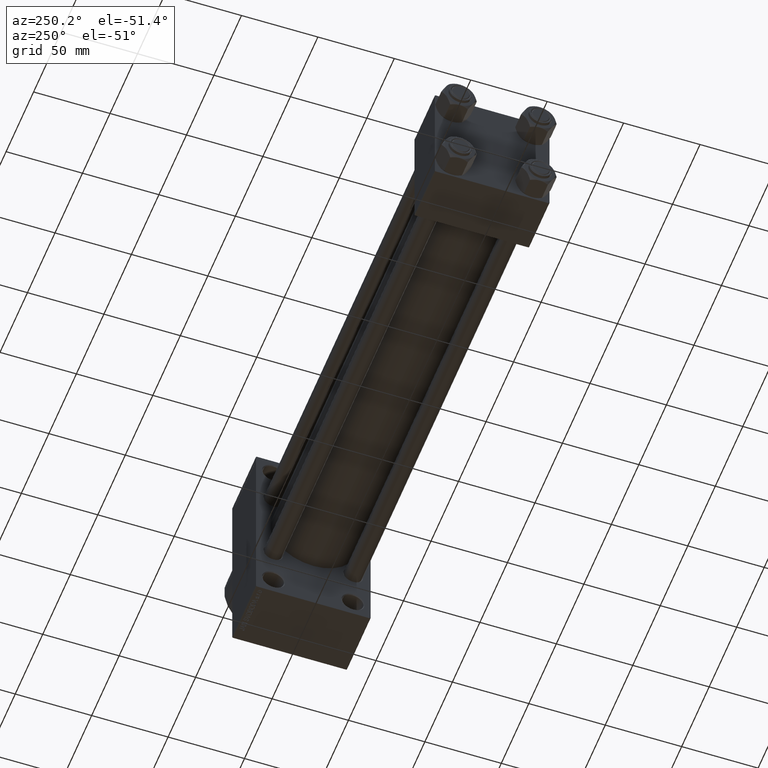
[diagram: clean part render]
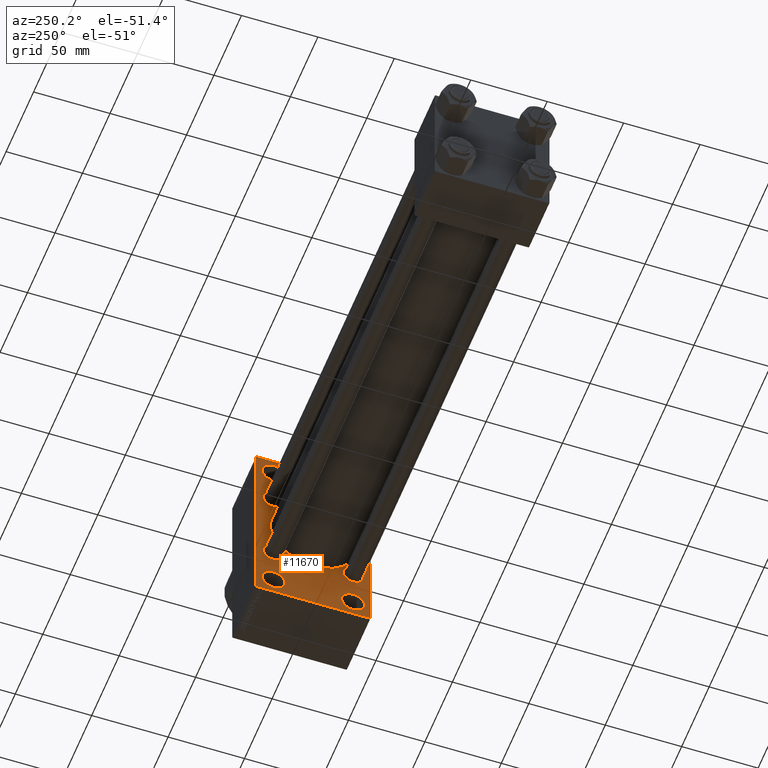
[diagram: same view with one face highlighted and labeled with its STEP entity id]
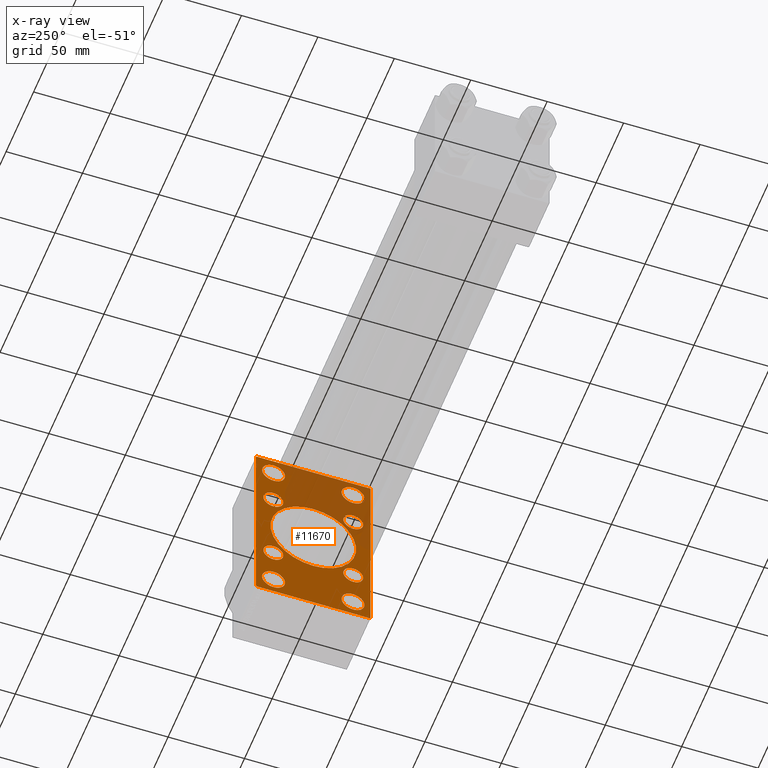
[diagram: x-ray of the same camera — body ghosted, the highlighted face saturated]
A machine part, auxiliary view. The second image highlights one B-rep face of the part: STEP entity #11670.
The next image is the same camera in x-ray: the body ghosted, the highlighted face saturated — about 35% of this face is hidden behind the body in this view.
In plain terms, the highlighted planar face has unit normal (-1, 0, 0).
Its self-contained STEP definition (entity closure, byte-faithful):
#307 = CARTESIAN_POINT ( 'NONE',  ( 324.9999999999999432, -26.14999999999999147, -32.65000000000001990 ) ) ;
#965 = EDGE_CURVE ( 'NONE', #5963, #39911, #36585, .T. ) ;
#1037 = ORIENTED_EDGE ( 'NONE', *, *, #40470, .T. ) ;
#1169 = AXIS2_PLACEMENT_3D ( 'NONE', #41691, #4789, #30424 ) ;
#1371 = VERTEX_POINT ( 'NONE', #1993 ) ;
#1605 = ORIENTED_EDGE ( 'NONE', *, *, #4237, .T. ) ;
#1841 = CARTESIAN_POINT ( 'NONE',  ( 324.9999999999999432, 26.00000000000000000, 44.99999999999987210 ) ) ;
#1993 = CARTESIAN_POINT ( 'NONE',  ( 324.9999999999999432, -26.14999999999999147, 19.65000000000000213 ) ) ;
#2144 = DIRECTION ( 'NONE',  ( 0.000000000000000000, 0.000000000000000000, -1.000000000000000000 ) ) ;
#2393 = CARTESIAN_POINT ( 'NONE',  ( 324.9999999999999432, 26.00000000000000000, 52.49999999999999289 ) ) ;
#2567 = CARTESIAN_POINT ( 'NONE',  ( 324.9999999999999432, 26.00000000000000000, -52.49999999999999289 ) ) ;
#2628 = FACE_BOUND ( 'NONE', #33123, .T. ) ;
#2644 = DIRECTION ( 'NONE',  ( 0.000000000000000000, 0.000000000000000000, 1.000000000000000000 ) ) ;
#2719 = EDGE_CURVE ( 'NONE', #33990, #11567, #12083, .T. ) ;
#2779 = DIRECTION ( 'NONE',  ( 0.000000000000000000, 0.000000000000000000, 1.000000000000000000 ) ) ;
#2807 = VERTEX_POINT ( 'NONE', #32762 ) ;
#2832 = EDGE_CURVE ( 'NONE', #17806, #44058, #6081, .T. ) ;
#2838 = DIRECTION ( 'NONE',  ( 0.000000000000000000, 0.000000000000000000, -1.000000000000000000 ) ) ;
#3031 = VERTEX_POINT ( 'NONE', #6133 ) ;
#3072 = ORIENTED_EDGE ( 'NONE', *, *, #23231, .T. ) ;
#3107 = CARTESIAN_POINT ( 'NONE',  ( 324.9999999999999432, 36.99999999999993605, -64.00000000000000000 ) ) ;
#3223 = EDGE_LOOP ( 'NONE', ( #38195, #19008 ) ) ;
#3477 = DIRECTION ( 'NONE',  ( 1.000000000000000000, -0.000000000000000000, 0.000000000000000000 ) ) ;
#3544 = FACE_BOUND ( 'NONE', #38585, .T. ) ;
#3603 = DIRECTION ( 'NONE',  ( 0.000000000000000000, -1.000000000000000000, -1.850371707708594563E-16 ) ) ;
#3704 = VECTOR ( 'NONE', #31367, 1000.000000000000000 ) ;
#3937 = AXIS2_PLACEMENT_3D ( 'NONE', #9794, #46956, #32330 ) ;
#4051 = DIRECTION ( 'NONE',  ( -0.000000000000000000, -0.7071067811865965336, -0.7071067811864985009 ) ) ;
#4237 = EDGE_CURVE ( 'NONE', #42310, #35100, #37202, .T. ) ;
#4491 = CARTESIAN_POINT ( 'NONE',  ( 324.9999999999999432, -25.99999999999999645, -60.00000000000010658 ) ) ;
#4494 = CIRCLE ( 'NONE', #31283, 28.00000000000000000 ) ;
#4580 = VERTEX_POINT ( 'NONE', #1841 ) ;
#4789 = DIRECTION ( 'NONE',  ( 1.000000000000000000, -0.000000000000000000, 0.000000000000000000 ) ) ;
#5126 = CARTESIAN_POINT ( 'NONE',  ( 324.9999999999999432, -26.14999999999999147, -19.65000000000000213 ) ) ;
#5277 = DIRECTION ( 'NONE',  ( 1.000000000000000000, -0.000000000000000000, 0.000000000000000000 ) ) ;
#5550 = DIRECTION ( 'NONE',  ( 0.000000000000000000, 0.000000000000000000, 1.000000000000000000 ) ) ;
#5740 = DIRECTION ( 'NONE',  ( 1.000000000000000000, 0.000000000000000000, 0.000000000000000000 ) ) ;
#5753 = EDGE_LOOP ( 'NONE', ( #46261, #28371 ) ) ;
#5963 = VERTEX_POINT ( 'NONE', #26769 ) ;
#6081 = CIRCLE ( 'NONE', #25201, 7.500000000000117240 ) ;
#6128 = VERTEX_POINT ( 'NONE', #16657 ) ;
#6133 = CARTESIAN_POINT ( 'NONE',  ( 324.9999999999999432, 26.14999999999999858, 32.65000000000001990 ) ) ;
#6167 = AXIS2_PLACEMENT_3D ( 'NONE', #35059, #38415, #31463 ) ;
#6204 = FACE_OUTER_BOUND ( 'NONE', #18358, .T. ) ;
#6366 = DIRECTION ( 'NONE',  ( 0.000000000000000000, 0.000000000000000000, 1.000000000000000000 ) ) ;
#6445 = FACE_BOUND ( 'NONE', #16335, .T. ) ;
#6845 = DIRECTION ( 'NONE',  ( 1.000000000000000000, -0.000000000000000000, 0.000000000000000000 ) ) ;
#6907 = FACE_BOUND ( 'NONE', #41489, .T. ) ;
#7041 = VERTEX_POINT ( 'NONE', #4491 ) ;
#7671 = VERTEX_POINT ( 'NONE', #12258 ) ;
#7785 = EDGE_CURVE ( 'NONE', #6128, #7671, #32191, .T. ) ;
#8018 = CIRCLE ( 'NONE', #44786, 6.500000000000008882 ) ;
#8064 = DIRECTION ( 'NONE',  ( 1.000000000000000000, -0.000000000000000000, 0.000000000000000000 ) ) ;
#8247 = CIRCLE ( 'NONE', #40409, 6.500000000000008882 ) ;
#8471 = AXIS2_PLACEMENT_3D ( 'NONE', #30004, #16780, #20153 ) ;
#9082 = EDGE_CURVE ( 'NONE', #12389, #17489, #10013, .T. ) ;
#9098 = DIRECTION ( 'NONE',  ( 0.000000000000000000, 0.000000000000000000, 1.000000000000000000 ) ) ;
#9145 = DIRECTION ( 'NONE',  ( 1.000000000000000000, -0.000000000000000000, 0.000000000000000000 ) ) ;
#9214 = AXIS2_PLACEMENT_3D ( 'NONE', #42467, #28070, #5550 ) ;
#9404 = EDGE_CURVE ( 'NONE', #37383, #20962, #21458, .T. ) ;
#9794 = CARTESIAN_POINT ( 'NONE',  ( 324.9999999999999432, 0.000000000000000000, 0.000000000000000000 ) ) ;
#10013 = CIRCLE ( 'NONE', #8471, 6.500000000000008882 ) ;
#10273 = FACE_BOUND ( 'NONE', #5753, .T. ) ;
#10438 = DIRECTION ( 'NONE',  ( 0.000000000000000000, 0.000000000000000000, 1.000000000000000000 ) ) ;
#10620 = VECTOR ( 'NONE', #33243, 1000.000000000000000 ) ;
#10662 = CARTESIAN_POINT ( 'NONE',  ( 324.9999999999999432, 26.00000000000000000, -52.49999999999999289 ) ) ;
#10997 = VERTEX_POINT ( 'NONE', #35392 ) ;
#11005 = EDGE_CURVE ( 'NONE', #20962, #37383, #27693, .T. ) ;
#11567 = VERTEX_POINT ( 'NONE', #34968 ) ;
#11670 = ADVANCED_FACE ( 'NONE', ( #24173, #10273, #24653, #6445, #3544, #18136, #2628, #47181, #6907, #6204 ), #32095, .T. ) ;
#11951 = DIRECTION ( 'NONE',  ( 1.000000000000000000, 0.000000000000000000, 0.000000000000000000 ) ) ;
#11969 = CARTESIAN_POINT ( 'NONE',  ( 324.9999999999999432, -25.99999999999999645, 52.50000000000000000 ) ) ;
#12083 = CIRCLE ( 'NONE', #42843, 28.00000000000000000 ) ;
#12235 = ORIENTED_EDGE ( 'NONE', *, *, #28352, .T. ) ;
#12240 = VECTOR ( 'NONE', #14977, 1000.000000000000000 ) ;
#12258 = CARTESIAN_POINT ( 'NONE',  ( 324.9999999999999432, 26.14999999999999858, -19.64999999999999503 ) ) ;
#12389 = VERTEX_POINT ( 'NONE', #307 ) ;
#12648 = CIRCLE ( 'NONE', #42555, 7.500000000000117240 ) ;
#13386 = ORIENTED_EDGE ( 'NONE', *, *, #26392, .T. ) ;
#13528 = DIRECTION ( 'NONE',  ( 1.000000000000000000, -0.000000000000000000, 0.000000000000000000 ) ) ;
#13598 = EDGE_CURVE ( 'NONE', #28834, #7041, #43079, .T. ) ;
#13646 = CARTESIAN_POINT ( 'NONE',  ( 324.9999999999999432, 26.00000000000000000, -60.00000000000010658 ) ) ;
#14120 = ORIENTED_EDGE ( 'NONE', *, *, #9404, .T. ) ;
#14319 = DIRECTION ( 'NONE',  ( 0.000000000000000000, -5.421010862427522170E-17, -1.000000000000000000 ) ) ;
#14504 = CARTESIAN_POINT ( 'NONE',  ( 324.9999999999999432, -26.14999999999999147, 32.65000000000001990 ) ) ;
#14536 = ORIENTED_EDGE ( 'NONE', *, *, #28301, .T. ) ;
#14610 = ORIENTED_EDGE ( 'NONE', *, *, #14854, .T. ) ;
#14635 = AXIS2_PLACEMENT_3D ( 'NONE', #17127, #13528, #6366 ) ;
#14819 = LINE ( 'NONE', #36885, #33138 ) ;
#14854 = EDGE_CURVE ( 'NONE', #41599, #29648, #14819, .T. ) ;
#14977 = DIRECTION ( 'NONE',  ( 0.000000000000000000, -1.000000000000000000, -1.850371707708594563E-16 ) ) ;
#15037 = CIRCLE ( 'NONE', #30363, 7.500000000000117240 ) ;
#15109 = ORIENTED_EDGE ( 'NONE', *, *, #45310, .T. ) ;
#15269 = ORIENTED_EDGE ( 'NONE', *, *, #26081, .T. ) ;
#16089 = LINE ( 'NONE', #34330, #40762 ) ;
#16335 = EDGE_LOOP ( 'NONE', ( #44241, #3072 ) ) ;
#16657 = CARTESIAN_POINT ( 'NONE',  ( 324.9999999999999432, 26.14999999999999858, -32.65000000000001279 ) ) ;
#16780 = DIRECTION ( 'NONE',  ( 1.000000000000000000, -0.000000000000000000, 0.000000000000000000 ) ) ;
#16973 = EDGE_CURVE ( 'NONE', #3031, #24153, #23359, .T. ) ;
#17127 = CARTESIAN_POINT ( 'NONE',  ( 324.9999999999999432, -26.14999999999999147, 26.15000000000000924 ) ) ;
#17489 = VERTEX_POINT ( 'NONE', #5126 ) ;
#17496 = AXIS2_PLACEMENT_3D ( 'NONE', #21452, #6845, #36783 ) ;
#17806 = VERTEX_POINT ( 'NONE', #18963 ) ;
#17965 = LINE ( 'NONE', #40284, #20520 ) ;
#18136 = FACE_BOUND ( 'NONE', #3223, .T. ) ;
#18354 = DIRECTION ( 'NONE',  ( 1.000000000000000000, -0.000000000000000000, 0.000000000000000000 ) ) ;
#18358 = EDGE_LOOP ( 'NONE', ( #15269, #12235, #21288, #15109, #45090, #1605, #32978, #14610 ) ) ;
#18576 = CARTESIAN_POINT ( 'NONE',  ( 324.9999999999999432, 37.50000000000000000, 63.99999999999998579 ) ) ;
#18732 = DIRECTION ( 'NONE',  ( 0.000000000000000000, 0.000000000000000000, 1.000000000000000000 ) ) ;
#18798 = EDGE_CURVE ( 'NONE', #44058, #17806, #12648, .T. ) ;
#18816 = LINE ( 'NONE', #18576, #12240 ) ;
#18963 = CARTESIAN_POINT ( 'NONE',  ( 324.9999999999999432, -25.99999999999999645, 60.00000000000011369 ) ) ;
#19008 = ORIENTED_EDGE ( 'NONE', *, *, #44334, .T. ) ;
#19063 = DIRECTION ( 'NONE',  ( 0.000000000000000000, 0.000000000000000000, 1.000000000000000000 ) ) ;
#19241 = AXIS2_PLACEMENT_3D ( 'NONE', #22194, #8064, #19063 ) ;
#19475 = CARTESIAN_POINT ( 'NONE',  ( 324.9999999999999432, 8.269258236473784371E-16, -28.00000000000000000 ) ) ;
#19476 = ORIENTED_EDGE ( 'NONE', *, *, #9082, .T. ) ;
#20153 = DIRECTION ( 'NONE',  ( 0.000000000000000000, 0.000000000000000000, 1.000000000000000000 ) ) ;
#20251 = VECTOR ( 'NONE', #14319, 1000.000000000000000 ) ;
#20520 = VECTOR ( 'NONE', #3603, 1000.000000000000000 ) ;
#20737 = DIRECTION ( 'NONE',  ( 0.000000000000000000, -0.7071067811865965336, 0.7071067811864985009 ) ) ;
#20961 = CARTESIAN_POINT ( 'NONE',  ( 324.9999999999999432, 26.00000000000000000, -44.99999999999987210 ) ) ;
#20962 = VERTEX_POINT ( 'NONE', #13646 ) ;
#20995 = DIRECTION ( 'NONE',  ( 1.000000000000000000, -0.000000000000000000, 0.000000000000000000 ) ) ;
#21288 = ORIENTED_EDGE ( 'NONE', *, *, #965, .F. ) ;
#21452 = CARTESIAN_POINT ( 'NONE',  ( 324.9999999999999432, 26.14999999999999858, -26.15000000000000213 ) ) ;
#21458 = CIRCLE ( 'NONE', #37566, 7.500000000000117240 ) ;
#21888 = EDGE_CURVE ( 'NONE', #10997, #4580, #15037, .T. ) ;
#22194 = CARTESIAN_POINT ( 'NONE',  ( 324.9999999999999432, -25.99999999999999645, -52.49999999999999289 ) ) ;
#22316 = CIRCLE ( 'NONE', #14635, 6.500000000000008882 ) ;
#22343 = DIRECTION ( 'NONE',  ( 1.000000000000000000, -0.000000000000000000, 0.000000000000000000 ) ) ;
#22760 = DIRECTION ( 'NONE',  ( 0.000000000000000000, 0.000000000000000000, 1.000000000000000000 ) ) ;
#22793 = CARTESIAN_POINT ( 'NONE',  ( 324.9999999999999432, -25.99999999999999645, -44.99999999999987210 ) ) ;
#23231 = EDGE_CURVE ( 'NONE', #4580, #10997, #30429, .T. ) ;
#23359 = CIRCLE ( 'NONE', #1169, 6.500000000000008882 ) ;
#23413 = VERTEX_POINT ( 'NONE', #23431 ) ;
#23431 = CARTESIAN_POINT ( 'NONE',  ( 324.9999999999999432, -36.99999999999993605, -64.00000000000001421 ) ) ;
#24093 = CARTESIAN_POINT ( 'NONE',  ( 324.9999999999999432, -26.14999999999999147, -26.15000000000000924 ) ) ;
#24153 = VERTEX_POINT ( 'NONE', #27246 ) ;
#24173 = FACE_BOUND ( 'NONE', #35971, .T. ) ;
#24653 = FACE_BOUND ( 'NONE', #26867, .T. ) ;
#25201 = AXIS2_PLACEMENT_3D ( 'NONE', #32305, #18354, #43332 ) ;
#25330 = CARTESIAN_POINT ( 'NONE',  ( 324.9999999999999432, -37.49999999999999289, 63.99999999999997158 ) ) ;
#26081 = EDGE_CURVE ( 'NONE', #29648, #23413, #17965, .T. ) ;
#26392 = EDGE_CURVE ( 'NONE', #11567, #33990, #4494, .T. ) ;
#26769 = CARTESIAN_POINT ( 'NONE',  ( 324.9999999999999432, -37.49999999999999289, 63.49999999999991473 ) ) ;
#26867 = EDGE_LOOP ( 'NONE', ( #14120, #39029 ) ) ;
#27132 = DIRECTION ( 'NONE',  ( 0.000000000000000000, 0.000000000000000000, 1.000000000000000000 ) ) ;
#27246 = CARTESIAN_POINT ( 'NONE',  ( 324.9999999999999432, 26.14999999999999858, 19.64999999999999147 ) ) ;
#27391 = CARTESIAN_POINT ( 'NONE',  ( 324.9999999999999432, 37.50000000000000000, 63.49999999999998579 ) ) ;
#27693 = CIRCLE ( 'NONE', #46052, 7.500000000000117240 ) ;
#27944 = ORIENTED_EDGE ( 'NONE', *, *, #30515, .T. ) ;
#28070 = DIRECTION ( 'NONE',  ( 1.000000000000000000, -0.000000000000000000, 0.000000000000000000 ) ) ;
#28301 = EDGE_CURVE ( 'NONE', #17489, #12389, #8247, .T. ) ;
#28352 = EDGE_CURVE ( 'NONE', #23413, #39911, #38490, .T. ) ;
#28371 = ORIENTED_EDGE ( 'NONE', *, *, #40205, .T. ) ;
#28834 = VERTEX_POINT ( 'NONE', #22793 ) ;
#29648 = VERTEX_POINT ( 'NONE', #3107 ) ;
#30004 = CARTESIAN_POINT ( 'NONE',  ( 324.9999999999999432, -26.14999999999999147, -26.15000000000000924 ) ) ;
#30207 = DIRECTION ( 'NONE',  ( 1.000000000000000000, -0.000000000000000000, 0.000000000000000000 ) ) ;
#30363 = AXIS2_PLACEMENT_3D ( 'NONE', #45834, #9145, #27132 ) ;
#30424 = DIRECTION ( 'NONE',  ( 0.000000000000000000, 0.000000000000000000, 1.000000000000000000 ) ) ;
#30429 = CIRCLE ( 'NONE', #32710, 7.500000000000117240 ) ;
#30515 = EDGE_CURVE ( 'NONE', #7671, #6128, #47360, .T. ) ;
#31283 = AXIS2_PLACEMENT_3D ( 'NONE', #38588, #5740, #2144 ) ;
#31292 = CARTESIAN_POINT ( 'NONE',  ( 324.9999999999999432, -50.49999999999740652, -50.50000000000441958 ) ) ;
#31367 = DIRECTION ( 'NONE',  ( 0.000000000000000000, 0.7071067811865867636, -0.7071067811865081598 ) ) ;
#31463 = DIRECTION ( 'NONE',  ( 0.000000000000000000, 0.000000000000000000, 1.000000000000000000 ) ) ;
#31628 = CIRCLE ( 'NONE', #19241, 7.500000000000117240 ) ;
#31967 = VECTOR ( 'NONE', #20737, 1000.000000000000114 ) ;
#32016 = DIRECTION ( 'NONE',  ( 1.000000000000000000, -0.000000000000000000, 0.000000000000000000 ) ) ;
#32095 = PLANE ( 'NONE',  #3937 ) ;
#32164 = CARTESIAN_POINT ( 'NONE',  ( 324.9999999999999432, -25.99999999999999645, 44.99999999999987921 ) ) ;
#32191 = CIRCLE ( 'NONE', #9214, 6.500000000000008882 ) ;
#32305 = CARTESIAN_POINT ( 'NONE',  ( 324.9999999999999432, -25.99999999999999645, 52.50000000000000000 ) ) ;
#32330 = DIRECTION ( 'NONE',  ( -0.000000000000000000, 0.000000000000000000, 1.000000000000000000 ) ) ;
#32541 = ORIENTED_EDGE ( 'NONE', *, *, #7785, .T. ) ;
#32710 = AXIS2_PLACEMENT_3D ( 'NONE', #2393, #35470, #2644 ) ;
#32714 = DIRECTION ( 'NONE',  ( 0.000000000000000000, 0.000000000000000000, 1.000000000000000000 ) ) ;
#32762 = CARTESIAN_POINT ( 'NONE',  ( 324.9999999999999432, -36.99999999999992895, 63.99999999999997158 ) ) ;
#32795 = CARTESIAN_POINT ( 'NONE',  ( 324.9999999999999432, 37.50000000000000000, 63.99999999999998579 ) ) ;
#32978 = ORIENTED_EDGE ( 'NONE', *, *, #44984, .T. ) ;
#33123 = EDGE_LOOP ( 'NONE', ( #27944, #32541 ) ) ;
#33138 = VECTOR ( 'NONE', #4051, 1000.000000000000114 ) ;
#33243 = DIRECTION ( 'NONE',  ( 0.000000000000000000, 0.000000000000000000, -1.000000000000000000 ) ) ;
#33610 = EDGE_CURVE ( 'NONE', #42310, #2807, #18816, .T. ) ;
#33990 = VERTEX_POINT ( 'NONE', #19475 ) ;
#34150 = EDGE_CURVE ( 'NONE', #1371, #39276, #42925, .T. ) ;
#34216 = ORIENTED_EDGE ( 'NONE', *, *, #2832, .T. ) ;
#34330 = CARTESIAN_POINT ( 'NONE',  ( 324.9999999999999432, -50.49999999999969447, 50.50000000000039080 ) ) ;
#34968 = CARTESIAN_POINT ( 'NONE',  ( 324.9999999999999432, -2.602085213965210642E-15, 28.00000000000000000 ) ) ;
#35059 = CARTESIAN_POINT ( 'NONE',  ( 324.9999999999999432, -26.14999999999999147, 26.15000000000000924 ) ) ;
#35100 = VERTEX_POINT ( 'NONE', #27391 ) ;
#35392 = CARTESIAN_POINT ( 'NONE',  ( 324.9999999999999432, 26.00000000000000000, 60.00000000000010658 ) ) ;
#35470 = DIRECTION ( 'NONE',  ( 1.000000000000000000, -0.000000000000000000, 0.000000000000000000 ) ) ;
#35971 = EDGE_LOOP ( 'NONE', ( #34216, #45294 ) ) ;
#36270 = CARTESIAN_POINT ( 'NONE',  ( 324.9999999999999432, 26.14999999999999858, 26.15000000000000213 ) ) ;
#36585 = LINE ( 'NONE', #25330, #10620 ) ;
#36620 = LINE ( 'NONE', #32795, #20251 ) ;
#36783 = DIRECTION ( 'NONE',  ( 0.000000000000000000, 0.000000000000000000, 1.000000000000000000 ) ) ;
#36885 = CARTESIAN_POINT ( 'NONE',  ( 324.9999999999999432, 50.49999999999739941, -50.50000000000441247 ) ) ;
#37202 = LINE ( 'NONE', #38568, #3704 ) ;
#37370 = ORIENTED_EDGE ( 'NONE', *, *, #34150, .T. ) ;
#37383 = VERTEX_POINT ( 'NONE', #20961 ) ;
#37566 = AXIS2_PLACEMENT_3D ( 'NONE', #10662, #3477, #32714 ) ;
#37860 = EDGE_LOOP ( 'NONE', ( #14536, #19476 ) ) ;
#38195 = ORIENTED_EDGE ( 'NONE', *, *, #16973, .T. ) ;
#38400 = DIRECTION ( 'NONE',  ( -0.000000000000000000, 0.7071067811865524577, 0.7071067811865426878 ) ) ;
#38415 = DIRECTION ( 'NONE',  ( 1.000000000000000000, -0.000000000000000000, 0.000000000000000000 ) ) ;
#38490 = LINE ( 'NONE', #31292, #31967 ) ;
#38568 = CARTESIAN_POINT ( 'NONE',  ( 324.9999999999999432, 50.49999999999791100, 50.50000000000351719 ) ) ;
#38585 = EDGE_LOOP ( 'NONE', ( #1037, #37370 ) ) ;
#38588 = CARTESIAN_POINT ( 'NONE',  ( 324.9999999999999432, -2.602085213965210642E-15, 0.000000000000000000 ) ) ;
#39029 = ORIENTED_EDGE ( 'NONE', *, *, #11005, .T. ) ;
#39246 = AXIS2_PLACEMENT_3D ( 'NONE', #41945, #5277, #9098 ) ;
#39276 = VERTEX_POINT ( 'NONE', #14504 ) ;
#39911 = VERTEX_POINT ( 'NONE', #44805 ) ;
#40205 = EDGE_CURVE ( 'NONE', #7041, #28834, #31628, .T. ) ;
#40284 = CARTESIAN_POINT ( 'NONE',  ( 324.9999999999999432, 37.49999999999999289, -64.00000000000000000 ) ) ;
#40409 = AXIS2_PLACEMENT_3D ( 'NONE', #24093, #32016, #2779 ) ;
#40470 = EDGE_CURVE ( 'NONE', #39276, #1371, #22316, .T. ) ;
#40762 = VECTOR ( 'NONE', #38400, 1000.000000000000000 ) ;
#41489 = EDGE_LOOP ( 'NONE', ( #13386, #45444 ) ) ;
#41599 = VERTEX_POINT ( 'NONE', #43337 ) ;
#41691 = CARTESIAN_POINT ( 'NONE',  ( 324.9999999999999432, 26.14999999999999858, 26.15000000000000213 ) ) ;
#41945 = CARTESIAN_POINT ( 'NONE',  ( 324.9999999999999432, -25.99999999999999645, -52.49999999999999289 ) ) ;
#42310 = VERTEX_POINT ( 'NONE', #44882 ) ;
#42467 = CARTESIAN_POINT ( 'NONE',  ( 324.9999999999999432, 26.14999999999999858, -26.15000000000000213 ) ) ;
#42555 = AXIS2_PLACEMENT_3D ( 'NONE', #11969, #30207, #22760 ) ;
#42843 = AXIS2_PLACEMENT_3D ( 'NONE', #44814, #11951, #2838 ) ;
#42925 = CIRCLE ( 'NONE', #6167, 6.500000000000008882 ) ;
#43079 = CIRCLE ( 'NONE', #39246, 7.500000000000117240 ) ;
#43332 = DIRECTION ( 'NONE',  ( 0.000000000000000000, 0.000000000000000000, 1.000000000000000000 ) ) ;
#43337 = CARTESIAN_POINT ( 'NONE',  ( 324.9999999999999432, 37.49999999999999289, -63.50000000000001421 ) ) ;
#44058 = VERTEX_POINT ( 'NONE', #32164 ) ;
#44241 = ORIENTED_EDGE ( 'NONE', *, *, #21888, .T. ) ;
#44334 = EDGE_CURVE ( 'NONE', #24153, #3031, #8018, .T. ) ;
#44786 = AXIS2_PLACEMENT_3D ( 'NONE', #36270, #22343, #18732 ) ;
#44805 = CARTESIAN_POINT ( 'NONE',  ( 324.9999999999999432, -37.49999999999999289, -63.50000000000002842 ) ) ;
#44814 = CARTESIAN_POINT ( 'NONE',  ( 324.9999999999999432, -2.602085213965210642E-15, 0.000000000000000000 ) ) ;
#44882 = CARTESIAN_POINT ( 'NONE',  ( 324.9999999999999432, 36.99999999999994316, 63.99999999999998579 ) ) ;
#44984 = EDGE_CURVE ( 'NONE', #35100, #41599, #36620, .T. ) ;
#45090 = ORIENTED_EDGE ( 'NONE', *, *, #33610, .F. ) ;
#45294 = ORIENTED_EDGE ( 'NONE', *, *, #18798, .T. ) ;
#45310 = EDGE_CURVE ( 'NONE', #5963, #2807, #16089, .T. ) ;
#45444 = ORIENTED_EDGE ( 'NONE', *, *, #2719, .T. ) ;
#45834 = CARTESIAN_POINT ( 'NONE',  ( 324.9999999999999432, 26.00000000000000000, 52.49999999999999289 ) ) ;
#46052 = AXIS2_PLACEMENT_3D ( 'NONE', #2567, #20995, #10438 ) ;
#46261 = ORIENTED_EDGE ( 'NONE', *, *, #13598, .T. ) ;
#46956 = DIRECTION ( 'NONE',  ( -1.000000000000000000, 0.000000000000000000, -0.000000000000000000 ) ) ;
#47181 = FACE_BOUND ( 'NONE', #37860, .T. ) ;
#47360 = CIRCLE ( 'NONE', #17496, 6.500000000000008882 ) ;